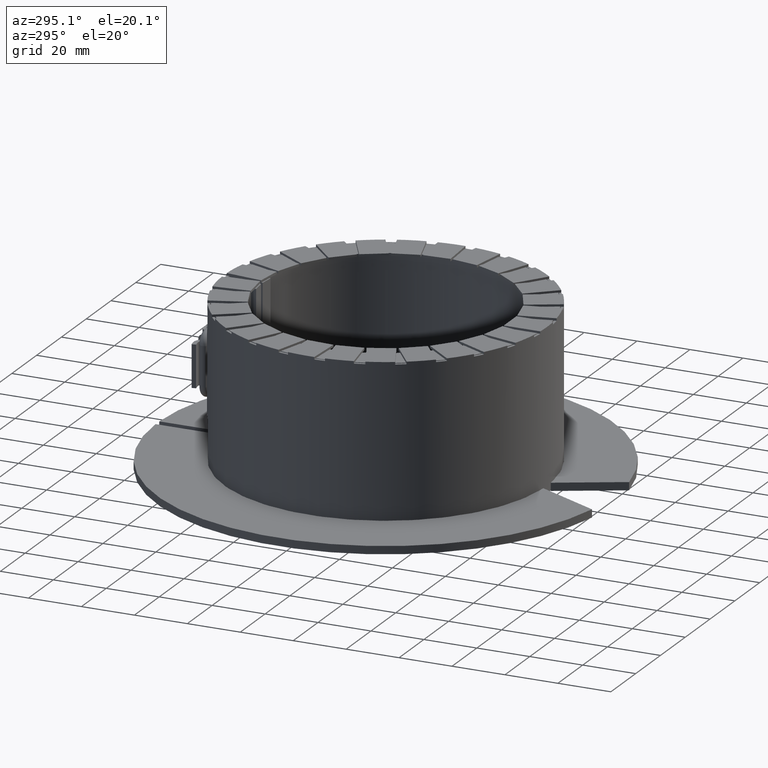
[diagram: clean part render]
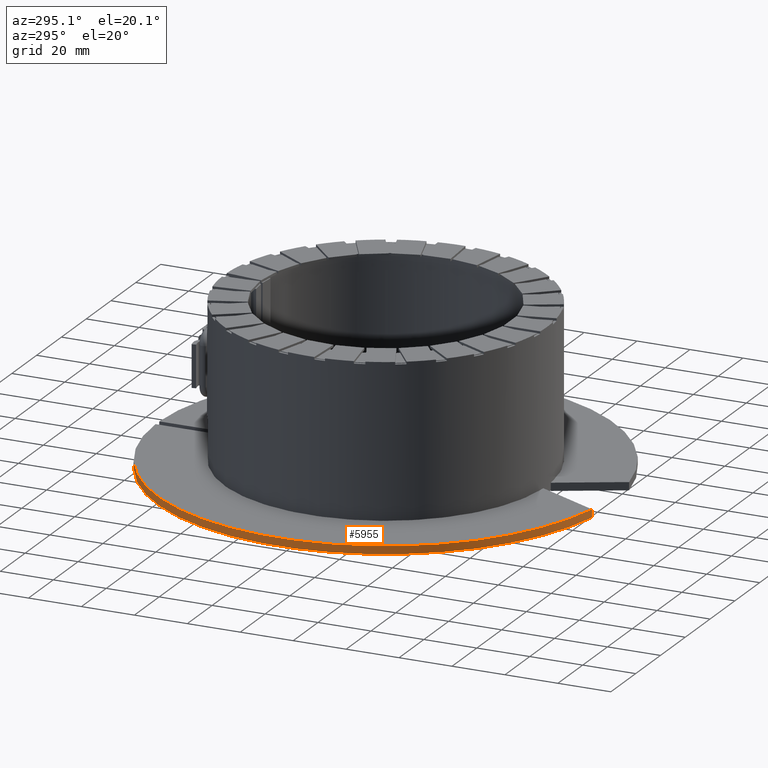
[diagram: same view with one face highlighted and labeled with its STEP entity id]
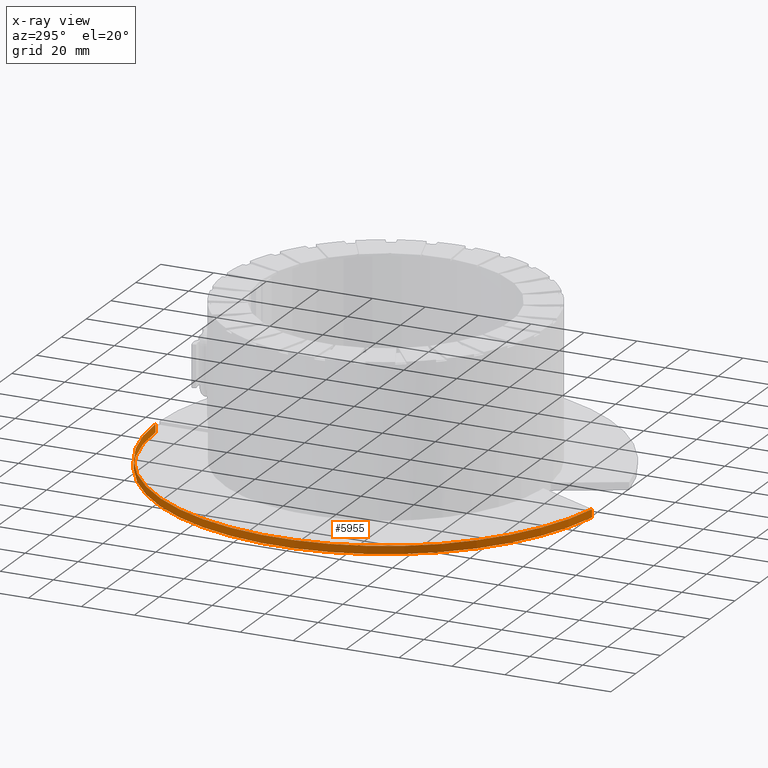
[diagram: x-ray of the same camera — body ghosted, the highlighted face saturated]
A machine part, auxiliary view. The second image highlights one B-rep face of the part: STEP entity #5955.
The next image is the same camera in x-ray: the body ghosted, the highlighted face saturated — about 0% of this face is hidden behind the body in this view.
In plain terms, the highlighted cylindrical surface (partial cylindrical patch) has radius 86.25 mm, axis along (0, 0, -1).
Its self-contained STEP definition (entity closure, byte-faithful):
#5833=CARTESIAN_POINT('',(-14.973042880722742,-84.940393729320803,-29.950000000000003));
#5834=VERTEX_POINT('',#5833);
#5851=CARTESIAN_POINT('',(-14.973042880722742,-84.940393729320803,-26.950000000000003));
#5852=VERTEX_POINT('',#5851);
#5859=CARTESIAN_POINT('',(-14.973042880722742,-84.940393729320803,-26.950000000000003));
#5860=DIRECTION('',(0.0,0.0,-1.0));
#5861=VECTOR('',#5860,3.0);
#5862=LINE('',#5859,#5861);
#5863=EDGE_CURVE('',#5852,#5834,#5862,.T.);
#5906=CARTESIAN_POINT('',(-1.49999999999999,86.236955535315602,-29.950000000000003));
#5907=VERTEX_POINT('',#5906);
#5914=CARTESIAN_POINT('',(-1.49999999999999,86.236955535315602,-26.950000000000003));
#5915=VERTEX_POINT('',#5914);
#5916=CARTESIAN_POINT('',(-1.49999999999999,86.236955535315602,-26.950000000000003));
#5917=DIRECTION('',(0.0,0.0,-1.0));
#5918=VECTOR('',#5917,3.0);
#5919=LINE('',#5916,#5918);
#5920=EDGE_CURVE('',#5915,#5907,#5919,.T.);
#5932=CARTESIAN_POINT('',(0.0,0.0,-26.950000000000003));
#5933=DIRECTION('',(0.0,0.0,-1.0));
#5934=DIRECTION('',(0.1736004971678,0.984816159180531,0.0));
#5935=AXIS2_PLACEMENT_3D('',#5932,#5933,#5934);
#5936=CYLINDRICAL_SURFACE('',#5935,86.25);
#5937=CARTESIAN_POINT('',(0.0,0.0,-29.950000000000003));
#5938=DIRECTION('',(0.0,0.0,1.0));
#5939=DIRECTION('',(0.1736004971678,0.984816159180531,0.0));
#5940=AXIS2_PLACEMENT_3D('',#5937,#5938,#5939);
#5941=CIRCLE('',#5940,86.25);
#5942=EDGE_CURVE('',#5907,#5834,#5941,.T.);
#5943=ORIENTED_EDGE('',*,*,#5942,.T.);
#5944=ORIENTED_EDGE('',*,*,#5863,.F.);
#5945=CARTESIAN_POINT('',(0.0,0.0,-26.950000000000003));
#5946=DIRECTION('',(0.0,0.0,1.0));
#5947=DIRECTION('',(0.1736004971678,0.984816159180531,0.0));
#5948=AXIS2_PLACEMENT_3D('',#5945,#5946,#5947);
#5949=CIRCLE('',#5948,86.25);
#5950=EDGE_CURVE('',#5915,#5852,#5949,.T.);
#5951=ORIENTED_EDGE('',*,*,#5950,.F.);
#5952=ORIENTED_EDGE('',*,*,#5920,.T.);
#5953=EDGE_LOOP('',(#5943,#5944,#5951,#5952));
#5954=FACE_OUTER_BOUND('',#5953,.T.);
#5955=ADVANCED_FACE('',(#5954),#5936,.T.);